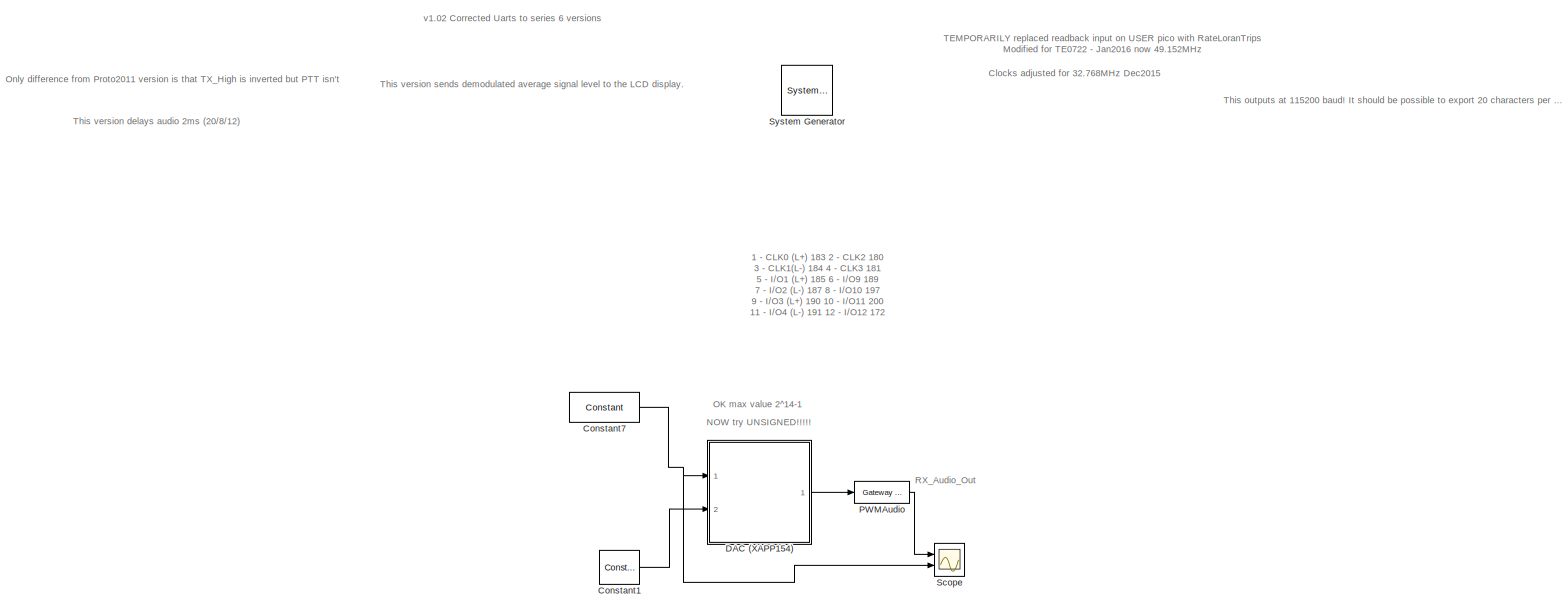
[diagram: root canvas - part 1/1, most of the canvas]
MODEL slx_c53c4ecf51ae
KIND model
CONFIG PreLoadFcn = %fpgaclk=1/32.768e6\nfpgaclk=1/49.152e6\n\nSerialData=[1,zeros(1,11),1,0,0,1]\nload ../window\nwin=win'   %Go back to using flatter and wider windowed sync function\n%load ../hanning    %use Hahn window\n\nload ../PREemphasis   %For pre-empasis and deemphasis FIRs\n\n%LUT3=xls2LUT2('../IQI_Qdemod.xls'); LUT3\nload ../LUT3\nload ../FIRiq2\n% xls2LUT\n\nGetProgFiles\n\nPinAssignments    %Get Pin references for TE072...<+592ch>
CONFIG StartFcn = fpgaclk=1/32.768e6\nSerialData=[1,zeros(1,11),1,0,0,1]
BLOCK [Reference]  System Generator  REF=xbsIndex_r4/ System Generator
  AttributesFormatString = System\nGenerator
  Impl_file = ISE Defaults
  Ports = []
  SourceBlock = xbsIndex_r4/ System Generator
  SourceType = Xilinx System Generator Block
  Synth_file = XST Defaults
  Tag = genX
  UserDataPersistent = on
  block_type = sysgen
  block_version = 8.2.02
  clock_wrapper = Clock Enables
  core_generation = According to Block Masks
  dbl_ovrd = According to Block Masks
  dcm_input_clock_period = 100
  deprecated_control = off
  directory = ../../SysgenOutput/TE0722
  eval_field = 0
  has_advanced_control = 0
  incr_netlist = off
  infoedit = System Generator
  package = clg225
  part = xc7z010
  proj_type = Project Navigator
  run_coregen = off
  sg_blockgui_xml = <!--  *  <copyright redacted>\n <icon width="51" bg_color="beige" height="50" caption_format="Syst...<+2602ch>
  sg_icon_stat = 51,50,0,0,token,white,0,58c5b5770fe5f7c311f53dbc6e73f0f6,right,,[ ],[ ]
  sg_mask_display = fprintf('','COMMENT: begin icon graphics');\npatch([0 51 51 0 0 ],[0 0 50 50 0 ],[1 1 1 ]);\npatch([1.6375 16.81 27.31 37.81 48.31 27.31 12.1375 1.6375 ],[36.655 36.655 47.155 36.655 47.155 47.155 47.155 36.655 ],[0.933333 0.203922 0.141176 ]);\npatch([12.1375 27.31 16.81 1.6375 12.1375 ],[26.155 26.155 36.655 36.655 26.155 ],[0.698039 0.0313725 0.219608 ]);\npatch([1.6375 16.81 27.31 12.1375 1.6375 ]...<+327ch>
  sggui_pos = 536,311,464,400
  simulink_period = fpgaclk
  speed = -1
  synthesis_tool = XST
  sysclk_period = 30
  testbench = off
  trim_vbits = Everywhere in SubSystem
  xilinxfamily = zynq
BLOCK [Reference] Constant1  REF=xbsIndex_r4/Constant
  Ports = [0, 1]
  SourceBlock = xbsIndex_r4/Constant
  SourceType = Xilinx Constant Block Block
  arith_type = Boolean
  bin_pt = 0
  block_type = constant
  block_version = VER_STRING_GOES_HERE
  carry = CIN
  const = 0
  dbl_ovrd = off
  dsp48_infoedit = The use of this block for DSP48 instructions is deprecated.  Please use the Opmode block.
  equ = P=C
  exp_width = 8
  explicit_period = on
  frac_width = 24
  gui_display_data_type = Boolean
  has_advanced_control = 0
  inp1 = P
  inp2 = PCIN>>17
  n_bits = 16
  opr = +
  opselect = C
  period = fpgaclk
  preci_type = Single
  sg_icon_stat = 40,34,0,1,white,blue,0,bf4ddd8b,right,,[ ],[ ]
  sg_mask_display = fprintf('','COMMENT: begin icon graphics');\npatch([0 40 40 0 0 ],[0 0 34 34 0 ],[0.77 0.82 0.91 ]);\nplot([0 40 40 0 0 ],[0 0 34 34 0 ]);\npatch([11.1 16.88 20.88 24.88 28.88 20.88 15.1 11.1 ],[21.44 21.44 25.44 21.44 25.44 25.44 25.44 21.44 ],[1 1 1 ]);\npatch([15.1 20.88 16.88 11.1 15.1 ],[17.44 17.44 21.44 21.44 17.44 ],[0.931 0.946 0.973 ]);\npatch([11.1 16.88 20.88 15.1 11.1 ],[13.44 13.44 17.44 ...<+299ch>
  sggui_pos = 759,157,413,494
BLOCK [Reference] Constant7  REF=xbsIndex_r4/Constant
  Ports = [0, 1]
  SourceBlock = xbsIndex_r4/Constant
  SourceType = Xilinx Constant Block Block
  arith_type = Unsigned
  bin_pt = 0
  block_type = constant
  block_version = VER_STRING_GOES_HERE
  carry = CIN
  const = 2^12-1
  dbl_ovrd = off
  dsp48_infoedit = The use of this block for DSP48 instructions is deprecated.  Please use the Opmode block.
  equ = P=C
  exp_width = 8
  explicit_period = on
  frac_width = 24
  gui_display_data_type = Fixed-point
  has_advanced_control = 0
  inp1 = P
  inp2 = PCIN>>17
  n_bits = 14
  opr = +
  opselect = C
  period = fpgaclk
  preci_type = Single
  sg_icon_stat = 70,30,0,1,white,blue,0,0c24eea3,right,,[ ],[ ]
  sg_mask_display = fprintf('','COMMENT: begin icon graphics');\npatch([0 70 70 0 0 ],[0 0 30 30 0 ],[0.77 0.82 0.91 ]);\nplot([0 70 70 0 0 ],[0 0 30 30 0 ]);\npatch([26.1 31.88 35.88 39.88 43.88 35.88 30.1 26.1 ],[19.44 19.44 23.44 19.44 23.44 23.44 23.44 19.44 ],[1 1 1 ]);\npatch([30.1 35.88 31.88 26.1 30.1 ],[15.44 15.44 19.44 19.44 15.44 ],[0.931 0.946 0.973 ]);\npatch([26.1 31.88 35.88 30.1 26.1 ],[11.44 11.44 15.44 ...<+306ch>
  sggui_pos = 719,117,413,494
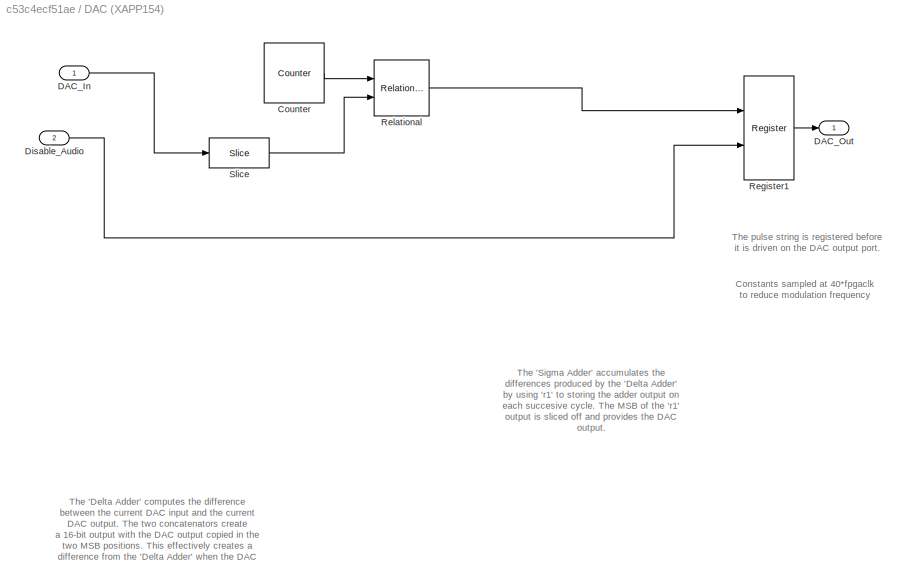
BLOCK [SubSystem] DAC (XAPP154)
  Ports = [2, 1]
  RequestExecContextInheritance = off
BLOCK [Reference] DAC (XAPP154)/Counter  REF=xbsIndex_r4/Counter
  Ports = [0, 1]
  SourceBlock = xbsIndex_r4/Counter
  SourceType = Xilinx Counter Block
  arith_type = Unsigned
  bin_pt = 0
  block_type = counter
  cnt_by_val = 1
  cnt_to = Inf
  cnt_type = Free Running
  dbl_ovrd = off
  en = off
  explicit_period = on
  has_advanced_control = 0
  implementation = Fabric
  infoedit = Hardware notes: Free running counters are the least expensive in hardware.  A count limited counter is implemented by combining a counter with a comparator.
  load_pin = off
  n_bits = 8
  operation = Up
  period = fpgaclk
  rst = off
  sg_icon_stat = 60,60,0,1,white,blue,0,7ac47ef5,right,,[ ],[ ]
  sg_mask_display = fprintf('','COMMENT: begin icon graphics');\npatch([0 60 60 0 0 ],[0 0 60 60 0 ],[0.77 0.82 0.91 ]);\nplot([0 60 60 0 0 ],[0 0 60 60 0 ]);\npatch([12.2 23.76 31.76 39.76 47.76 31.76 20.2 12.2 ],[38.88 38.88 46.88 38.88 46.88 46.88 46.88 38.88 ],[1 1 1 ]);\npatch([20.2 31.76 23.76 12.2 20.2 ],[30.88 30.88 38.88 38.88 30.88 ],[0.931 0.946 0.973 ]);\npatch([12.2 23.76 31.76 20.2 12.2 ],[22.88 22.88 30.88 ...<+321ch>
  sggui_pos = 462,14,382,785
  start_count = 0
  use_behavioral_HDL = off
  xl_area = [0,0,0,0,0,0,0]
  xl_use_area = off
BLOCK [Inport] DAC (XAPP154)/DAC_In
  IconDisplay = Port number
BLOCK [Outport] DAC (XAPP154)/DAC_Out
  IconDisplay = Port number
BLOCK [Inport] DAC (XAPP154)/Disable_Audio
  IconDisplay = Port number
  Port = 2
BLOCK [Reference] DAC (XAPP154)/Register1  REF=xbsIndex_r4/Register
  Ports = [2, 1]
  SourceBlock = xbsIndex_r4/Register
  SourceType = Xilinx Register Block
  block_type = register
  block_version = VER_STRING_GOES_HERE
  dbl_ovrd = off
  en = off
  has_advanced_control = 0
  init = 0
  rst = on
  sg_icon_stat = 50,104,2,1,white,blue,0,140cc11c,right,,[ ],[ ]
  sg_mask_display = fprintf('','COMMENT: begin icon graphics');\npatch([0 50 50 0 0 ],[0 0 104 104 0 ],[0.77 0.82 0.91 ]);\nplot([0 50 50 0 0 ],[0 0 104 104 0 ]);\npatch([9.425 19.54 26.54 33.54 40.54 26.54 16.425 9.425 ],[59.77 59.77 66.77 59.77 66.77 66.77 66.77 59.77 ],[1 1 1 ]);\npatch([16.425 26.54 19.54 9.425 16.425 ],[52.77 52.77 59.77 59.77 52.77 ],[0.931 0.946 0.973 ]);\npatch([9.425 19.54 26.54 16.425 9.425 ],[4...<+457ch>
  sggui_pos = 75,34,368,215
  xl_area = [1 1 0 0 0 0 0]
  xl_use_area = off
BLOCK [Reference] DAC (XAPP154)/Relational  REF=xbsIndex_r4/Relational
  Ports = [2, 1]
  SourceBlock = xbsIndex_r4/Relational
  SourceType = Xilinx Arithmetic Relational Operator Block
  block_type = relational
  dbl_ovrd = off
  en = off
  has_advanced_control = 0
  latency = 1
  mode = a<b
  op_type = Bool
  sg_icon_stat = 55,56,2,1,white,blue,0,9a1f8f13,right,,[ ],[ ]
  sg_mask_display = fprintf('','COMMENT: begin icon graphics');\npatch([0 55 55 0 0 ],[0 0 56 56 0 ],[0.77 0.82 0.91 ]);\nplot([0 55 55 0 0 ],[0 0 56 56 0 ]);\npatch([11.425 21.54 28.54 35.54 42.54 28.54 18.425 11.425 ],[35.77 35.77 42.77 35.77 42.77 42.77 42.77 35.77 ],[1 1 1 ]);\npatch([18.425 28.54 21.54 11.425 18.425 ],[28.77 28.77 35.77 35.77 28.77 ],[0.931 0.946 0.973 ]);\npatch([11.425 21.54 28.54 18.425 11.425 ],[...<+517ch>
  sggui_pos = 75,34,368,297
  xl_area = [0,0,0,0,0,0,0]
  xl_use_area = off
BLOCK [Reference] DAC (XAPP154)/Slice  REF=xbsIndex_r4/Slice
  Ports = [1, 1]
  SourceBlock = xbsIndex_r4/Slice
  SourceType = Xilinx Bit Slice Extractor Block
  base0 = LSB of Input
  base1 = MSB of Input
  bit0 = 0
  bit1 = 0
  block_type = slice
  boolean_output = off
  dbl_ovrd = off
  has_advanced_control = 0
  infoedit = Extracts a given range of bits from each input sample and presents it at the output.  The output type is ordinarily unsigned with binary point at zero, but can be Boolean when the slice is one bit wide.<br><br>Hardware notes: In hardware this block costs nothing.
  mode = Upper Bit Location + Width
  nbits = 8
  sg_icon_stat = 60,30,1,1,white,blue,0,1fd851a7,right,,[ ],[ ]
  sg_mask_display = fprintf('','COMMENT: begin icon graphics');\npatch([0 60 60 0 0 ],[0 0 30 30 0 ],[0.77 0.82 0.91 ]);\nplot([0 60 60 0 0 ],[0 0 30 30 0 ]);\npatch([21.1 26.88 30.88 34.88 38.88 30.88 25.1 21.1 ],[19.44 19.44 23.44 19.44 23.44 23.44 23.44 19.44 ],[1 1 1 ]);\npatch([25.1 30.88 26.88 21.1 25.1 ],[15.44 15.44 19.44 19.44 15.44 ],[0.931 0.946 0.973 ]);\npatch([21.1 26.88 30.88 25.1 21.1 ],[11.44 11.44 15.44 ...<+304ch>
  sggui_pos = 65,24,633,509
BLOCK [Reference] PWMAudio  REF=xbsIndex_r4/Gateway Out
  DACChannel = '1'
  LOCs = PWMAudio
  Ports = [1, 1]
  SourceBlock = xbsIndex_r4/Gateway Out
  SourceType = Xilinx Gateway Out Block
  UseAsDAC = off
  address_offset = hex2dec('00')
  automatic_assignment = on
  block_type = gatewayout
  block_version = VER_STRING_GOES_HERE
  columns = 1
  has_advanced_control = 0
  hdl_port = on
  infoedit = Gateway out block.  Converts Xilinx fixed-point or floating-point type inputs into ouputs of type Simulink integer, single, double, or fixed-point.<br><br>Hardware notes:  In hardware these blocks become top level output ports or are discarded, depending on how they are configured.
  inherit_from_input = off
  interface = None
  intf_description = ''
  io_standard = {'LVCMOS33'}
  locs_specified = on
  rows = 1
  sg_icon_stat = 55,22,1,1,white,yellow,1,cc31b7ac,right,,[ ],[ ]
  sg_mask_display = fprintf('','COMMENT: begin icon graphics');\npatch([0 55 55 0 0 ],[0 0 22 22 0 ],[0.95 0.93 0.65 ]);\nplot([0 55 55 0 0 ],[0 0 22 22 0 ]);\npatch([20.325 24.66 27.66 30.66 33.66 27.66 23.325 20.325 ],[14.33 14.33 17.33 14.33 17.33 17.33 17.33 14.33 ],[1 1 1 ]);\npatch([23.325 27.66 24.66 20.325 23.325 ],[11.33 11.33 14.33 14.33 11.33 ],[0.985 0.979 0.895 ]);\npatch([20.325 24.66 27.66 23.325 20.325 ],[...<+396ch>
  sggui_pos = 20,20,356,370
  timing_constraint = None
  xl_area = [0, 0, 0, 0, 0, 0, 0]
  xl_use_area = off
BLOCK [Scope] Scope
  DataFormat = StructureWithTime
  Floating = off
  LimitDataPoints = off
  NumInputPorts = 2
  Ports = [2]
  SampleTime = 0
  SaveName = ScopeData1
  ShowLegends = off
  YMax = 1~8601.6
  YMin = 0~7782.4
  ZoomMode = xonly
ANNOTATION (root): 1 - CLK0 (L+) 183 2 - CLK2 180 3 - CLK1(L-) 184 4 - CLK3 181 5 - I/O1 (L+) 185 6 - I/O9 189 7 - I/O2 (L-) 187 8 - I/O10 197 9 - I/O3 (L+) 190 10 - I/O11 200 11 - I/O4 (L-) 191 12 - I/O12 172 13 - I/O5 (L+) 194 14 - I/O13 176 15 - I/O6 (L-) 196 16 - I/O14 178 17 - I/O7 (L+) 198 18 - I/O15 182 19 - I/O8 (L-) 199 20 - Gnd NA
ANNOTATION (root): Clocks adjusted for 32.768MHz Dec2015
ANNOTATION (root): NOW try UNSIGNED!!!!!
ANNOTATION (root): OK max value 2^14-1
ANNOTATION (root): Only difference from Proto2011 version is that TX_High is inverted but PTT isn't
ANNOTATION (root): RX_Audio_Out
ANNOTATION (root): TEMPORARILY replaced readback input on USER pico with RateLoranTrips Modified for TE0722 - Jan2016 now 49.152MHz
ANNOTATION (root): This outputs at 115200 baud! It should be possible to export 20 characters per 2ms period
ANNOTATION (root): This version delays audio 2ms (20/8/12)
ANNOTATION (root): This version sends demodulated average signal level to the LCD display.
ANNOTATION (root): v1.02 Corrected Uarts to series 6 versions
ANNOTATION DAC (XAPP154): Constants sampled at 40*fpgaclk to reduce modulation frequency
ANNOTATION DAC (XAPP154): The 'Delta Adder' computes the difference between the current DAC input and the current DAC output. The two concatenators create a 16-bit output with the DAC output copied in the two MSB positions. This effectively creates a difference from the 'Delta Adder' when the DAC output is 1.
ANNOTATION DAC (XAPP154): The 'Sigma Adder' accumulates the differences produced by the 'Delta Adder' by using 'r1' to storing the adder output on each succesive cycle. The MSB of the 'r1' output is sliced off and provides the DAC output.
ANNOTATION DAC (XAPP154): The pulse string is registered before it is driven on the DAC output port.
LINE Constant1:1 -> DAC (XAPP154):2
NET Constant7:1 -> DAC (XAPP154):1, Scope:2
LINE DAC (XAPP154)/Counter:1 -> DAC (XAPP154)/Relational:1
LINE DAC (XAPP154)/DAC_In:1 -> DAC (XAPP154)/Slice:1
LINE DAC (XAPP154)/Disable_Audio:1 -> DAC (XAPP154)/Register1:2
LINE DAC (XAPP154)/Register1:1 -> DAC (XAPP154)/DAC_Out:1
LINE DAC (XAPP154)/Relational:1 -> DAC (XAPP154)/Register1:1
LINE DAC (XAPP154)/Slice:1 -> DAC (XAPP154)/Relational:2
LINE DAC (XAPP154):1 -> PWMAudio:1
LINE PWMAudio:1 -> Scope:1
note: NET lines group one-source signal fan-out (src -> all destinations, sorted); 1:1 wires keep LINE
